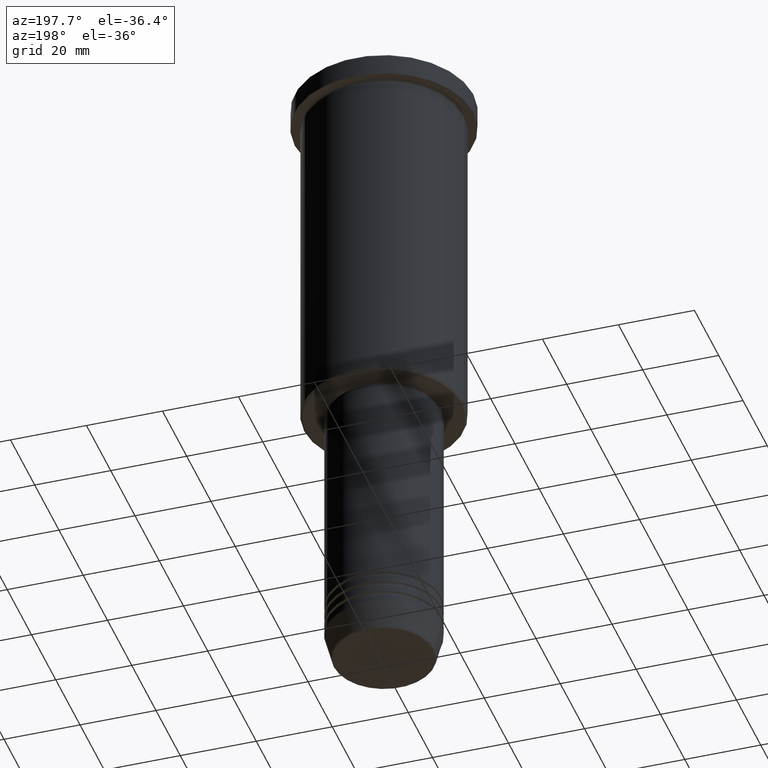
[diagram: clean part render]
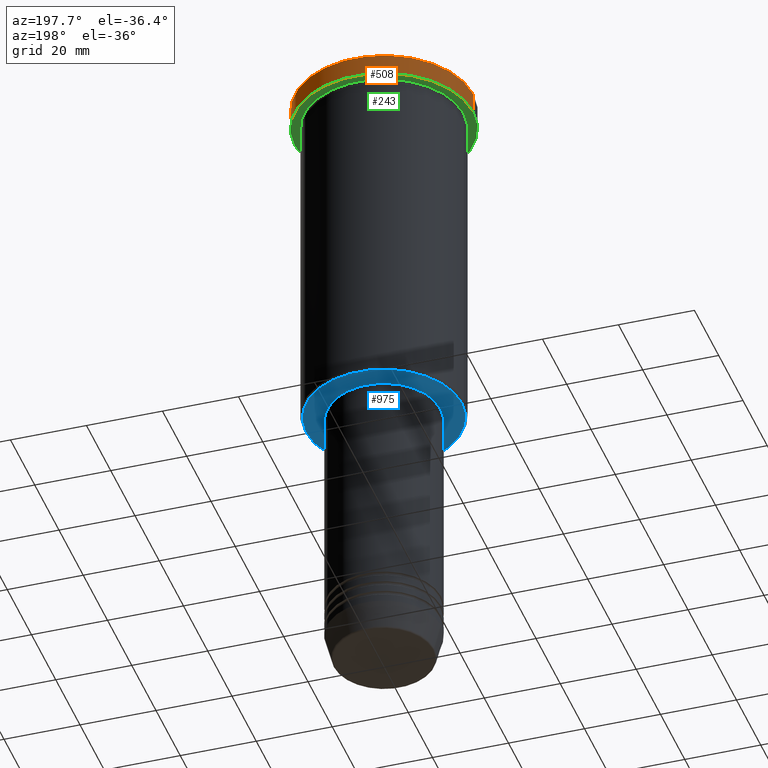
[diagram: same view with three faces highlighted in distinct colors, each labeled with its STEP entity id]
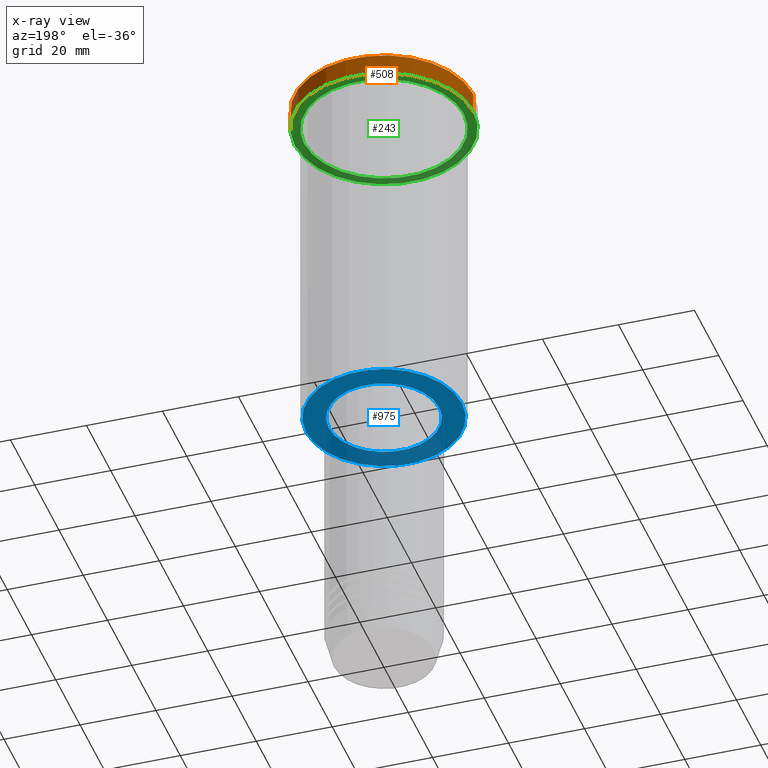
[diagram: x-ray of the same camera — body ghosted, the three highlighted faces saturated]
A machine part, auxiliary view with three faces highlighted in distinct colors.
The next image is the same camera in x-ray (body ghosted, the three faces saturated) — at least one of them is partly hidden behind the body in this view.
Their STEP definitions:

[orange] entity #508 — the highlighted cylindrical surface (partial cylindrical patch) has radius 23.5 mm, axis along (-0, -0, 1).
#25 = VERTEX_POINT ( 'NONE', #713 ) ;
#75 = CARTESIAN_POINT ( 'NONE',  ( 0.000000000000000000, 0.000000000000000000, 0.000000000000000000 ) ) ;
#88 = EDGE_CURVE ( 'NONE', #857, #423, #746, .T. ) ;
#89 = DIRECTION ( 'NONE',  ( 1.000000000000000000, 0.000000000000000000, 0.000000000000000000 ) ) ;
#100 = LINE ( 'NONE', #619, #899 ) ;
#130 = CARTESIAN_POINT ( 'NONE',  ( 23.50000000000000000, 0.000000000000000000, -5.999999999999994671 ) ) ;
#189 = EDGE_CURVE ( 'NONE', #25, #546, #284, .T. ) ;
#228 = AXIS2_PLACEMENT_3D ( 'NONE', #75, #442, #816 ) ;
#256 = DIRECTION ( 'NONE',  ( -0.000000000000000000, -0.000000000000000000, 1.000000000000000000 ) ) ;
#278 = CARTESIAN_POINT ( 'NONE',  ( 23.50000000000000000, 0.000000000000000000, 0.000000000000000000 ) ) ;
#281 = CARTESIAN_POINT ( 'NONE',  ( 0.000000000000000000, 0.000000000000000000, -0.4999999999999726885 ) ) ;
#284 = CIRCLE ( 'NONE', #1143, 23.50000000000000000 ) ;
#423 = VERTEX_POINT ( 'NONE', #801 ) ;
#442 = DIRECTION ( 'NONE',  ( -0.000000000000000000, -0.000000000000000000, 1.000000000000000000 ) ) ;
#473 = EDGE_LOOP ( 'NONE', ( #553, #1069, #1045, #1000 ) ) ;
#508 = ADVANCED_FACE ( 'NONE', ( #631 ), #625, .T. ) ;
#525 = EDGE_CURVE ( 'NONE', #423, #25, #100, .T. ) ;
#546 = VERTEX_POINT ( 'NONE', #1104 ) ;
#553 = ORIENTED_EDGE ( 'NONE', *, *, #88, .T. ) ;
#561 = DIRECTION ( 'NONE',  ( -0.000000000000000000, -0.000000000000000000, 1.000000000000000000 ) ) ;
#619 = CARTESIAN_POINT ( 'NONE',  ( -23.50000000000000000, 2.877919977996280320E-15, 0.000000000000000000 ) ) ;
#625 = CYLINDRICAL_SURFACE ( 'NONE', #228, 23.50000000000000000 ) ;
#631 = FACE_OUTER_BOUND ( 'NONE', #473, .T. ) ;
#712 = VECTOR ( 'NONE', #561, 1000.000000000000000 ) ;
#713 = CARTESIAN_POINT ( 'NONE',  ( -23.50000000000000000, 2.877919977996280320E-15, -0.4999999999999726885 ) ) ;
#746 = CIRCLE ( 'NONE', #1007, 23.50000000000000000 ) ;
#751 = LINE ( 'NONE', #278, #712 ) ;
#801 = CARTESIAN_POINT ( 'NONE',  ( -23.50000000000000000, 2.877919977996280320E-15, -5.999999999999994671 ) ) ;
#816 = DIRECTION ( 'NONE',  ( 1.000000000000000000, 0.000000000000000000, 0.000000000000000000 ) ) ;
#857 = VERTEX_POINT ( 'NONE', #130 ) ;
#899 = VECTOR ( 'NONE', #256, 1000.000000000000000 ) ;
#901 = DIRECTION ( 'NONE',  ( -0.000000000000000000, -0.000000000000000000, 1.000000000000000000 ) ) ;
#999 = DIRECTION ( 'NONE',  ( 1.000000000000000000, 0.000000000000000000, 0.000000000000000000 ) ) ;
#1000 = ORIENTED_EDGE ( 'NONE', *, *, #1038, .F. ) ;
#1007 = AXIS2_PLACEMENT_3D ( 'NONE', #1095, #901, #89 ) ;
#1038 = EDGE_CURVE ( 'NONE', #857, #546, #751, .T. ) ;
#1045 = ORIENTED_EDGE ( 'NONE', *, *, #189, .T. ) ;
#1069 = ORIENTED_EDGE ( 'NONE', *, *, #525, .T. ) ;
#1095 = CARTESIAN_POINT ( 'NONE',  ( 0.000000000000000000, 0.000000000000000000, -5.999999999999994671 ) ) ;
#1104 = CARTESIAN_POINT ( 'NONE',  ( 23.50000000000000000, 0.000000000000000000, -0.4999999999999726885 ) ) ;
#1143 = AXIS2_PLACEMENT_3D ( 'NONE', #281, #1175, #999 ) ;
#1175 = DIRECTION ( 'NONE',  ( 0.000000000000000000, 0.000000000000000000, -1.000000000000000000 ) ) ;

[blue] entity #975 — the highlighted planar face has unit normal (0, 0, -1).
#43 = AXIS2_PLACEMENT_3D ( 'NONE', #862, #1051, #394 ) ;
#104 = DIRECTION ( 'NONE',  ( -1.000000000000000000, 0.000000000000000000, -0.000000000000000000 ) ) ;
#112 = PLANE ( 'NONE',  #883 ) ;
#143 = ORIENTED_EDGE ( 'NONE', *, *, #783, .T. ) ;
#185 = ORIENTED_EDGE ( 'NONE', *, *, #259, .T. ) ;
#195 = AXIS2_PLACEMENT_3D ( 'NONE', #759, #386, #1121 ) ;
#214 = CIRCLE ( 'NONE', #43, 20.49999999999998934 ) ;
#259 = EDGE_CURVE ( 'NONE', #604, #438, #990, .T. ) ;
#291 = FACE_OUTER_BOUND ( 'NONE', #406, .T. ) ;
#309 = CARTESIAN_POINT ( 'NONE',  ( 14.49999999999999822, 0.000000000000000000, -96.00000000000000000 ) ) ;
#329 = ORIENTED_EDGE ( 'NONE', *, *, #1125, .T. ) ;
#338 = DIRECTION ( 'NONE',  ( -0.000000000000000000, -0.000000000000000000, 1.000000000000000000 ) ) ;
#373 = CARTESIAN_POINT ( 'NONE',  ( -14.49999999999999822, 1.775737858763662015E-15, -96.00000000000000000 ) ) ;
#386 = DIRECTION ( 'NONE',  ( -0.000000000000000000, -0.000000000000000000, 1.000000000000000000 ) ) ;
#394 = DIRECTION ( 'NONE',  ( -1.000000000000000000, 0.000000000000000000, 0.000000000000000000 ) ) ;
#397 = EDGE_CURVE ( 'NONE', #819, #742, #768, .T. ) ;
#405 = DIRECTION ( 'NONE',  ( 1.000000000000000000, 0.000000000000000000, 0.000000000000000000 ) ) ;
#406 = EDGE_LOOP ( 'NONE', ( #329, #185 ) ) ;
#438 = VERTEX_POINT ( 'NONE', #509 ) ;
#506 = ORIENTED_EDGE ( 'NONE', *, *, #397, .T. ) ;
#509 = CARTESIAN_POINT ( 'NONE',  ( 20.49999999999998934, 0.000000000000000000, -96.00000000000000000 ) ) ;
#564 = DIRECTION ( 'NONE',  ( 0.000000000000000000, 0.000000000000000000, -1.000000000000000000 ) ) ;
#576 = CIRCLE ( 'NONE', #195, 14.49999999999999822 ) ;
#579 = DIRECTION ( 'NONE',  ( -1.000000000000000000, 0.000000000000000000, 0.000000000000000000 ) ) ;
#604 = VERTEX_POINT ( 'NONE', #640 ) ;
#640 = CARTESIAN_POINT ( 'NONE',  ( -20.49999999999998934, 2.541142108230757480E-15, -96.00000000000000000 ) ) ;
#655 = FACE_BOUND ( 'NONE', #1025, .T. ) ;
#705 = CARTESIAN_POINT ( 'NONE',  ( 0.000000000000000000, 0.000000000000000000, -96.00000000000000000 ) ) ;
#742 = VERTEX_POINT ( 'NONE', #373 ) ;
#759 = CARTESIAN_POINT ( 'NONE',  ( 0.000000000000000000, 0.000000000000000000, -96.00000000000000000 ) ) ;
#768 = CIRCLE ( 'NONE', #970, 14.49999999999999822 ) ;
#783 = EDGE_CURVE ( 'NONE', #742, #819, #576, .T. ) ;
#815 = DIRECTION ( 'NONE',  ( 0.000000000000000000, 0.000000000000000000, -1.000000000000000000 ) ) ;
#819 = VERTEX_POINT ( 'NONE', #309 ) ;
#862 = CARTESIAN_POINT ( 'NONE',  ( 0.000000000000000000, 0.000000000000000000, -96.00000000000000000 ) ) ;
#863 = AXIS2_PLACEMENT_3D ( 'NONE', #1112, #564, #579 ) ;
#883 = AXIS2_PLACEMENT_3D ( 'NONE', #1177, #815, #104 ) ;
#970 = AXIS2_PLACEMENT_3D ( 'NONE', #705, #338, #405 ) ;
#975 = ADVANCED_FACE ( 'NONE', ( #291, #655 ), #112, .T. ) ;
#990 = CIRCLE ( 'NONE', #863, 20.49999999999998934 ) ;
#1025 = EDGE_LOOP ( 'NONE', ( #506, #143 ) ) ;
#1051 = DIRECTION ( 'NONE',  ( 0.000000000000000000, 0.000000000000000000, -1.000000000000000000 ) ) ;
#1112 = CARTESIAN_POINT ( 'NONE',  ( 0.000000000000000000, 0.000000000000000000, -96.00000000000000000 ) ) ;
#1121 = DIRECTION ( 'NONE',  ( 1.000000000000000000, 0.000000000000000000, 0.000000000000000000 ) ) ;
#1125 = EDGE_CURVE ( 'NONE', #438, #604, #214, .T. ) ;
#1177 = CARTESIAN_POINT ( 'NONE',  ( 0.000000000000000000, 21.00000000000000000, -96.00000000000000000 ) ) ;

[green] entity #243 — the highlighted planar face has unit normal (0, 0, -1).
#33 = DIRECTION ( 'NONE',  ( -0.000000000000000000, -0.000000000000000000, 1.000000000000000000 ) ) ;
#50 = DIRECTION ( 'NONE',  ( -1.000000000000000000, 0.000000000000000000, 0.000000000000000000 ) ) ;
#80 = CIRCLE ( 'NONE', #285, 21.00000000000000000 ) ;
#83 = CARTESIAN_POINT ( 'NONE',  ( 21.00000000000000000, 2.571758278209441661E-15, -5.999999999999994671 ) ) ;
#88 = EDGE_CURVE ( 'NONE', #857, #423, #746, .T. ) ;
#89 = DIRECTION ( 'NONE',  ( 1.000000000000000000, 0.000000000000000000, 0.000000000000000000 ) ) ;
#130 = CARTESIAN_POINT ( 'NONE',  ( 23.50000000000000000, 0.000000000000000000, -5.999999999999994671 ) ) ;
#145 = EDGE_LOOP ( 'NONE', ( #1101, #935 ) ) ;
#155 = AXIS2_PLACEMENT_3D ( 'NONE', #1161, #235, #885 ) ;
#223 = EDGE_CURVE ( 'NONE', #597, #430, #708, .T. ) ;
#235 = DIRECTION ( 'NONE',  ( -0.000000000000000000, -0.000000000000000000, 1.000000000000000000 ) ) ;
#243 = ADVANCED_FACE ( 'NONE', ( #298, #1030 ), #932, .T. ) ;
#285 = AXIS2_PLACEMENT_3D ( 'NONE', #422, #696, #50 ) ;
#298 = FACE_BOUND ( 'NONE', #145, .T. ) ;
#366 = EDGE_LOOP ( 'NONE', ( #850, #1061 ) ) ;
#368 = EDGE_CURVE ( 'NONE', #423, #857, #1049, .T. ) ;
#377 = AXIS2_PLACEMENT_3D ( 'NONE', #401, #659, #927 ) ;
#401 = CARTESIAN_POINT ( 'NONE',  ( 0.000000000000000000, 23.50000000000000000, -5.999999999999994671 ) ) ;
#409 = CARTESIAN_POINT ( 'NONE',  ( -21.00000000000000000, 0.000000000000000000, -5.999999999999994671 ) ) ;
#422 = CARTESIAN_POINT ( 'NONE',  ( 0.000000000000000000, 0.000000000000000000, -5.999999999999994671 ) ) ;
#423 = VERTEX_POINT ( 'NONE', #801 ) ;
#430 = VERTEX_POINT ( 'NONE', #409 ) ;
#465 = DIRECTION ( 'NONE',  ( -1.000000000000000000, 0.000000000000000000, 0.000000000000000000 ) ) ;
#477 = EDGE_CURVE ( 'NONE', #430, #597, #80, .T. ) ;
#570 = CARTESIAN_POINT ( 'NONE',  ( 0.000000000000000000, 0.000000000000000000, -5.999999999999994671 ) ) ;
#597 = VERTEX_POINT ( 'NONE', #83 ) ;
#659 = DIRECTION ( 'NONE',  ( 0.000000000000000000, 0.000000000000000000, -1.000000000000000000 ) ) ;
#696 = DIRECTION ( 'NONE',  ( -0.000000000000000000, -0.000000000000000000, 1.000000000000000000 ) ) ;
#708 = CIRCLE ( 'NONE', #949, 21.00000000000000000 ) ;
#746 = CIRCLE ( 'NONE', #1007, 23.50000000000000000 ) ;
#801 = CARTESIAN_POINT ( 'NONE',  ( -23.50000000000000000, 2.877919977996280320E-15, -5.999999999999994671 ) ) ;
#850 = ORIENTED_EDGE ( 'NONE', *, *, #88, .F. ) ;
#857 = VERTEX_POINT ( 'NONE', #130 ) ;
#885 = DIRECTION ( 'NONE',  ( 1.000000000000000000, 0.000000000000000000, 0.000000000000000000 ) ) ;
#901 = DIRECTION ( 'NONE',  ( -0.000000000000000000, -0.000000000000000000, 1.000000000000000000 ) ) ;
#927 = DIRECTION ( 'NONE',  ( -1.000000000000000000, 0.000000000000000000, -0.000000000000000000 ) ) ;
#932 = PLANE ( 'NONE',  #377 ) ;
#935 = ORIENTED_EDGE ( 'NONE', *, *, #223, .T. ) ;
#949 = AXIS2_PLACEMENT_3D ( 'NONE', #570, #33, #465 ) ;
#1007 = AXIS2_PLACEMENT_3D ( 'NONE', #1095, #901, #89 ) ;
#1030 = FACE_OUTER_BOUND ( 'NONE', #366, .T. ) ;
#1049 = CIRCLE ( 'NONE', #155, 23.50000000000000000 ) ;
#1061 = ORIENTED_EDGE ( 'NONE', *, *, #368, .F. ) ;
#1095 = CARTESIAN_POINT ( 'NONE',  ( 0.000000000000000000, 0.000000000000000000, -5.999999999999994671 ) ) ;
#1101 = ORIENTED_EDGE ( 'NONE', *, *, #477, .T. ) ;
#1161 = CARTESIAN_POINT ( 'NONE',  ( 0.000000000000000000, 0.000000000000000000, -5.999999999999994671 ) ) ;